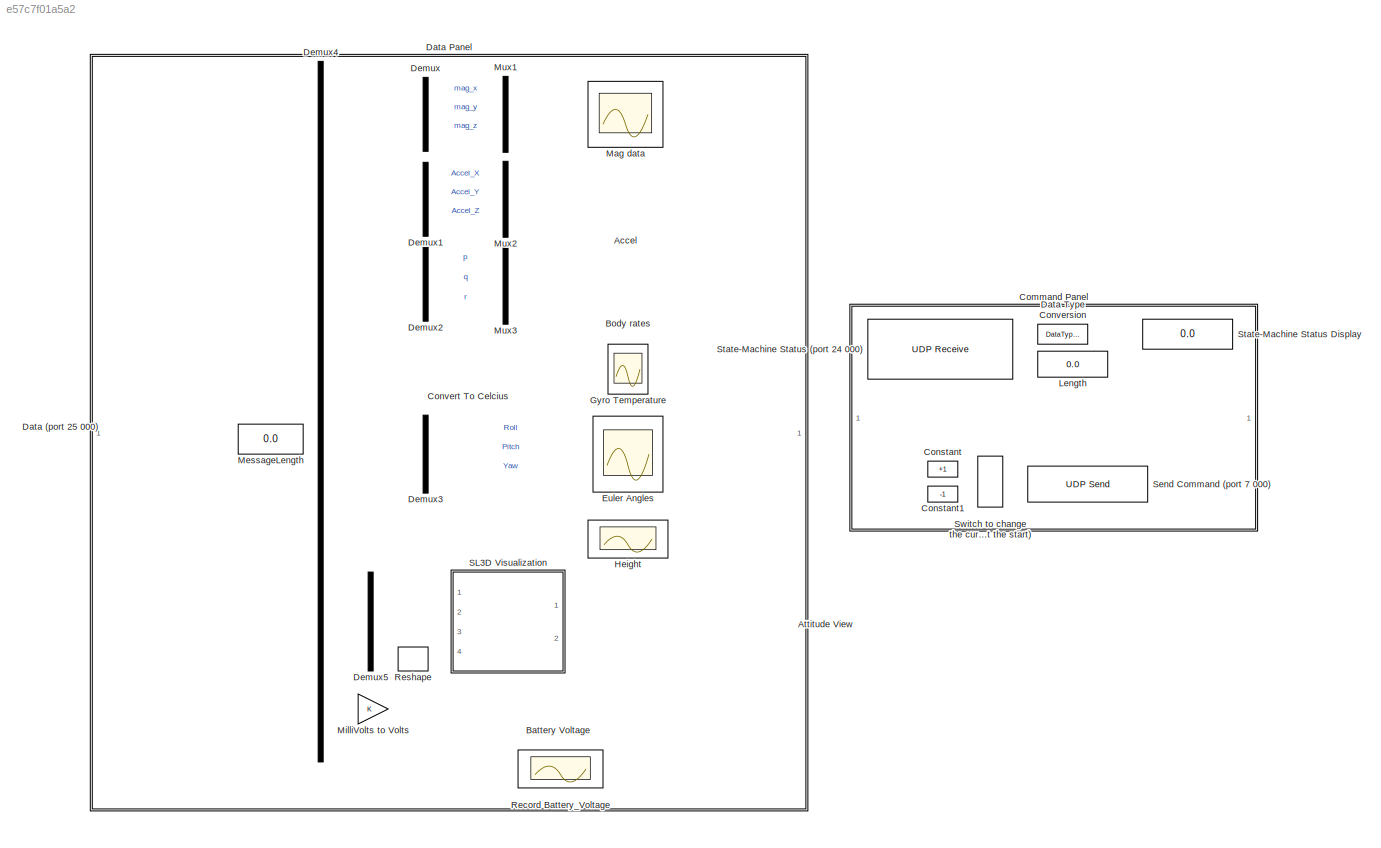
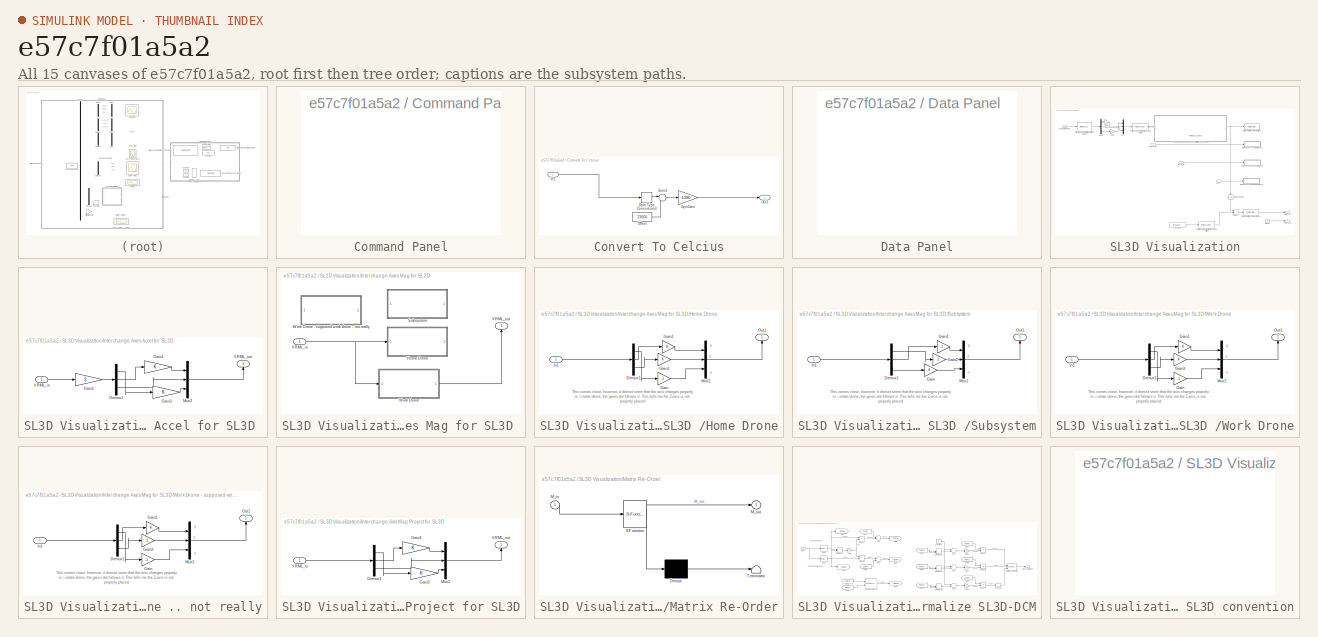
[diagram: thumbnail index - all 15 canvases of the model, root first then tree order]
MODEL slx_e57c7f01a5a2
KIND model
BLOCK [Scope] Accel
  DataFormat = StructureWithTime
  Floating = off
  LimitDataPoints = off
  NumInputPorts = 1
  Ports = [1]
  SampleTime = 0
  SaveName = Accel
  SaveToWorkspace = on
  ShowLegends = on
  TimeRange = 100
  YMax = 2575
  YMin = 2025
BLOCK [Reference] Attitude View  REF=vrlib/VR Sink
  AllowVariableSize = off
  AutoView = off
  FieldsWritten = Drone.rotation.4.1.1.double#Drone.translation.3.1.1.double
  InstantiateOnLoad = on
  Ports = [2]
  RemoteChange = off
  RemoteView = off
  SampleTime = -1
  SourceBlock = vrlib/VR Sink
  SourceType = Virtual Reality Sink
  VideoDimensions = []
  ViewEnable = on
  WorldFileName = myDrone3.wrl
BLOCK [Display] Battery Voltage
  Decimation = 1
  Ports = [1]
BLOCK [Scope] Body rates
  DataFormat = StructureWithTime
  Floating = off
  LimitDataPoints = off
  NumInputPorts = 1
  Ports = [1]
  SampleTime = 0
  SaveName = Gyro
  SaveToWorkspace = on
  ShowLegends = on
  TimeRange = 90
  YMax = 35
  YMin = -45
BLOCK [SubSystem] Command Panel
  Ports = []
  RequestExecContextInheritance = off
BLOCK [Constant] Constant
  Value = +1
BLOCK [Constant] Constant1
  Value = -1
BLOCK [SubSystem] Convert To Celcius
  Ports = [1, 1]
  RequestExecContextInheritance = off
BLOCK [DataTypeConversion] Convert To Celcius/Data Type Conversion3
  OutDataTypeStr = int16
  RndMeth = Floor
  SaturateOnIntegerOverflow = off
BLOCK [Gain] Convert To Celcius/GyroGain
  Gain = 1/280
  OutDataTypeStr = double
  ParamDataTypeStr = Inherit: Inherit via internal rule
  SaturateOnIntegerOverflow = off
BLOCK [Inport] Convert To Celcius/In1
  IconDisplay = Port number
BLOCK [Constant] Convert To Celcius/Offset
  OutDataTypeStr = int16
  Value = 23000
BLOCK [Outport] Convert To Celcius/Out1
  IconDisplay = Port number
BLOCK [Sum] Convert To Celcius/Sum4
  IconShape = round
  InputSameDT = off
  Inputs = |++
  OutDataTypeStr = Inherit: Inherit via internal rule
  Ports = [2, 1]
  SaturateOnIntegerOverflow = off
BLOCK [Reference] Data (port 25 000)  REF=dspnetwork/UDP Receive
  Ports = [0, 2]
  SourceBlock = dspnetwork/UDP Receive
  SourceType = UDP Receive
  blockingTime = 0
  dims = 34
  isVarSize = off
  localPort = 25000
  localURL = '0.0.0.0'
  recvBufferSize = 8192
  remotePort = -1
  remoteURL = '192.168.1.1'
  sampletime = 2/400
  showBlockingTime = off
  signalDatatype = double
BLOCK [SubSystem] Data Panel
  Ports = []
  RequestExecContextInheritance = off
BLOCK [DataTypeConversion] Data Type Conversion
  OutDataTypeStr = Enum: Drone_StateModeType
  RndMeth = Floor
  SaturateOnIntegerOverflow = off
BLOCK [Demux] Demux
  DisplayOption = bar
  Outputs = 3
  Ports = [1, 3]
BLOCK [Demux] Demux1
  DisplayOption = bar
  Outputs = 3
  Ports = [1, 3]
BLOCK [Demux] Demux2
  DisplayOption = bar
  Outputs = 3
  Ports = [1, 3]
BLOCK [Demux] Demux3
  DisplayOption = bar
  Outputs = 3
  Ports = [1, 3]
BLOCK [Demux] Demux4
  DisplayOption = bar
  Outputs = [3 3 3 1 3 2 18 1]
  Ports = [1, 8]
BLOCK [Demux] Demux5
  DisplayOption = bar
  Outputs = [3 3 3 9]
  Ports = [1, 4]
BLOCK [Scope] Euler Angles
  DataFormat = StructureWithTime
  Floating = off
  LimitDataPoints = off
  NumInputPorts = 3
  Ports = [3]
  SampleTime = 0
  SaveName = EulerAngles
  SaveToWorkspace = on
  ShowLegends = off
  TimeRange = 160
  YMax = -0.87~-0.18~4.95
  YMin = -1.04~-0.28~4.15
BLOCK [Scope] Gyro Temperature
  DataFormat = StructureWithTime
  Floating = off
  LegendLocations = 0.86326     0.92098     0.11358    0.028438
  LimitDataPoints = off
  NumInputPorts = 1
  Ports = [1]
  SampleTime = 0
  SaveName = TempMeasure
  SaveToWorkspace = on
  ShowLegends = on
  TimeRange = 100
  YMax = 82.5
  YMin = 47.5
  ZoomMode = yonly
BLOCK [Scope] Height
  DataFormat = StructureWithTime
  Floating = off
  LimitDataPoints = off
  NumInputPorts = 1
  Ports = [1]
  SampleTime = 0
  SaveName = RecordedHeight
  SaveToWorkspace = on
  ShowLegends = off
  YMax = 150
  YMin = -30
BLOCK [Display] Length
  Decimation = 1
  Ports = [1]
BLOCK [Scope] Mag data
  DataFormat = StructureWithTime
  Floating = off
  LimitDataPoints = off
  NumInputPorts = 1
  Ports = [1]
  SampleTime = 0
  SaveName = MagData
  SaveToWorkspace = on
  ShowLegends = on
  TimeRange = 100
  YMax = -30
  YMin = -240
BLOCK [Display] MessageLength
  Decimation = 1
  Ports = [1]
BLOCK [Gain] MilliVolts to Volts
  OutDataTypeStr = Inherit: Inherit via internal rule
  ParamDataTypeStr = Inherit: Inherit via internal rule
  SaturateOnIntegerOverflow = off
BLOCK [Mux] Mux1
  DisplayOption = bar
  Inputs = 3
  Ports = [3, 1]
BLOCK [Mux] Mux2
  DisplayOption = bar
  Inputs = 3
  Ports = [3, 1]
BLOCK [Mux] Mux3
  DisplayOption = bar
  Inputs = 3
  Ports = [3, 1]
BLOCK [Scope] Record Battery_Voltage
  DataFormat = StructureWithTime
  Floating = off
  LimitDataPoints = off
  NumInputPorts = 1
  Ports = [1]
  SampleTime = 0
  SaveName = ScopeData1
  ShowLegends = off
  YMax = 12.455
  YMin = 12.395
BLOCK [Reshape] Reshape
  OutputDimensionality = Customize
  OutputDimensions = [3,3]
  Ports = [1, 1]
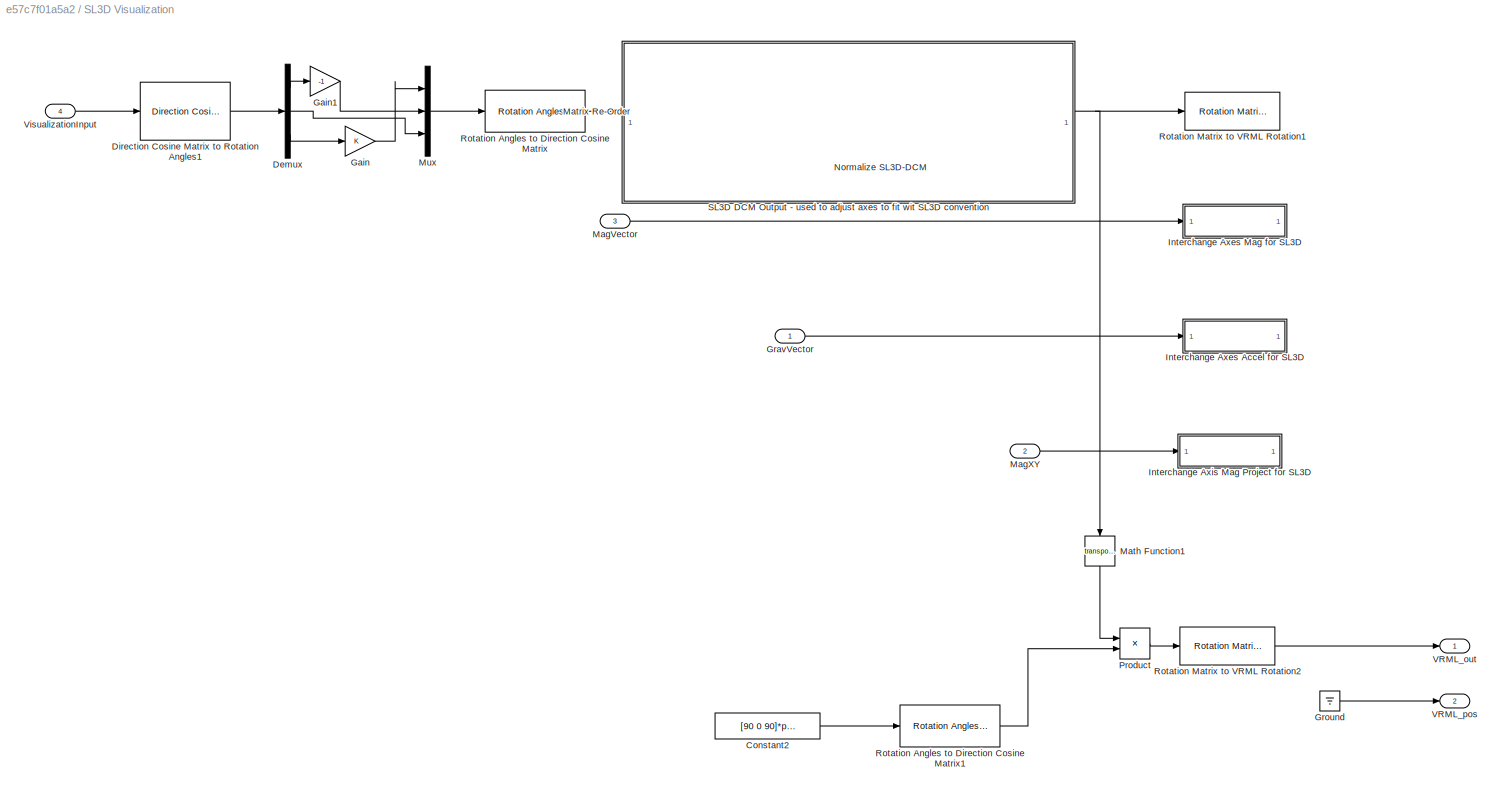
BLOCK [SubSystem] SL3D Visualization
  Ports = [4, 2]
  RequestExecContextInheritance = off
BLOCK [Constant] SL3D Visualization/Constant2
  Value = [90 0 90]*pi/180*1
BLOCK [Demux] SL3D Visualization/Demux
  DisplayOption = bar
  Outputs = 3
  Ports = [1, 3]
BLOCK [Reference] SL3D Visualization/Direction Cosine Matrix to Rotation Angles1  REF=aerolibtransform2/Direction Cosine Matrix
to Rotation Angles
  AttributesFormatString = Rotation Order: %<rotationOrder>
  Ports = [1, 1]
  SourceBlock = aerolibtransform2/Direction Cosine Matrix\nto Rotation Angles
  SourceType = DCM2Ang
  lim = ZeroR3
  rotationOrder = XYZ
BLOCK [Gain] SL3D Visualization/Gain
  ParamDataTypeStr = Inherit: Inherit via internal rule
  SaturateOnIntegerOverflow = off
BLOCK [Gain] SL3D Visualization/Gain1
  Gain = -1
  ParamDataTypeStr = Inherit: Inherit via internal rule
  SaturateOnIntegerOverflow = off
BLOCK [Inport] SL3D Visualization/GravVector
  IconDisplay = Port number
BLOCK [Ground] SL3D Visualization/Ground
BLOCK [SubSystem] SL3D Visualization/Interchange Axes Accel for SL3D 
  Ports = [1, 1]
  RequestExecContextInheritance = off
BLOCK [Demux] SL3D Visualization/Interchange Axes Accel for SL3D /Demux1
  DisplayOption = bar
  Outputs = 3
  Ports = [1, 3]
BLOCK [Gain] SL3D Visualization/Interchange Axes Accel for SL3D /Gain1
  Gain = 3
  OutDataTypeStr = Inherit: Inherit via internal rule
  ParamDataTypeStr = Inherit: Inherit via internal rule
  SaturateOnIntegerOverflow = off
BLOCK [Gain] SL3D Visualization/Interchange Axes Accel for SL3D /Gain2
  OutDataTypeStr = Inherit: Inherit via internal rule
  ParamDataTypeStr = Inherit: Inherit via internal rule
  SaturateOnIntegerOverflow = off
BLOCK [Gain] SL3D Visualization/Interchange Axes Accel for SL3D /Gain3
  OutDataTypeStr = Inherit: Inherit via internal rule
  ParamDataTypeStr = Inherit: Inherit via internal rule
  SaturateOnIntegerOverflow = off
BLOCK [Mux] SL3D Visualization/Interchange Axes Accel for SL3D /Mux2
  DisplayOption = bar
  Inputs = 3
  Ports = [3, 1]
BLOCK [Inport] SL3D Visualization/Interchange Axes Accel for SL3D /VRML_in
  IconDisplay = Port number
BLOCK [Outport] SL3D Visualization/Interchange Axes Accel for SL3D /VRML_out
  IconDisplay = Port number
BLOCK [SubSystem] SL3D Visualization/Interchange Axes Mag for SL3D 
  Ports = [1, 1]
  RequestExecContextInheritance = off
BLOCK [SubSystem] SL3D Visualization/Interchange Axes Mag for SL3D /Home Drone
  Ports = [1, 1]
  RequestExecContextInheritance = off
BLOCK [Demux] SL3D Visualization/Interchange Axes Mag for SL3D /Home Drone/Demux1
  DisplayOption = bar
  Outputs = 3
  Ports = [1, 3]
BLOCK [Gain] SL3D Visualization/Interchange Axes Mag for SL3D /Home Drone/Gain
  Gain = -1
  OutDataTypeStr = Inherit: Inherit via internal rule
  ParamDataTypeStr = Inherit: Inherit via internal rule
  SaturateOnIntegerOverflow = off
BLOCK [Gain] SL3D Visualization/Interchange Axes Mag for SL3D /Home Drone/Gain1
  OutDataTypeStr = Inherit: Inherit via internal rule
  ParamDataTypeStr = Inherit: Inherit via internal rule
  SaturateOnIntegerOverflow = off
BLOCK [Gain] SL3D Visualization/Interchange Axes Mag for SL3D /Home Drone/Gain2
  OutDataTypeStr = Inherit: Inherit via internal rule
  ParamDataTypeStr = Inherit: Inherit via internal rule
  SaturateOnIntegerOverflow = off
BLOCK [Inport] SL3D Visualization/Interchange Axes Mag for SL3D /Home Drone/In1
  IconDisplay = Port number
BLOCK [Mux] SL3D Visualization/Interchange Axes Mag for SL3D /Home Drone/Mux2
  DisplayOption = bar
  Inputs = 3
  Ports = [3, 1]
BLOCK [Outport] SL3D Visualization/Interchange Axes Mag for SL3D /Home Drone/Out1
  IconDisplay = Port number
BLOCK [SubSystem] SL3D Visualization/Interchange Axes Mag for SL3D /Subsystem
  Commented = on
  Ports = [1, 1]
  RequestExecContextInheritance = off
BLOCK [Demux] SL3D Visualization/Interchange Axes Mag for SL3D /Subsystem/Demux1
  DisplayOption = bar
  Outputs = 3
  Ports = [1, 3]
BLOCK [Gain] SL3D Visualization/Interchange Axes Mag for SL3D /Subsystem/Gain
  OutDataTypeStr = Inherit: Inherit via internal rule
  ParamDataTypeStr = Inherit: Inherit via internal rule
  SaturateOnIntegerOverflow = off
BLOCK [Gain] SL3D Visualization/Interchange Axes Mag for SL3D /Subsystem/Gain1
  Gain = -1
  OutDataTypeStr = Inherit: Inherit via internal rule
  ParamDataTypeStr = Inherit: Inherit via internal rule
  SaturateOnIntegerOverflow = off
BLOCK [Gain] SL3D Visualization/Interchange Axes Mag for SL3D /Subsystem/Gain2
  Gain = -1
  OutDataTypeStr = Inherit: Inherit via internal rule
  ParamDataTypeStr = Inherit: Inherit via internal rule
  SaturateOnIntegerOverflow = off
BLOCK [Inport] SL3D Visualization/Interchange Axes Mag for SL3D /Subsystem/In1
  IconDisplay = Port number
BLOCK [Mux] SL3D Visualization/Interchange Axes Mag for SL3D /Subsystem/Mux2
  DisplayOption = bar
  Inputs = 3
  Ports = [3, 1]
BLOCK [Outport] SL3D Visualization/Interchange Axes Mag for SL3D /Subsystem/Out1
  IconDisplay = Port number
BLOCK [Inport] SL3D Visualization/Interchange Axes Mag for SL3D /VRML_in
  IconDisplay = Port number
BLOCK [Outport] SL3D Visualization/Interchange Axes Mag for SL3D /VRML_out
  IconDisplay = Port number
BLOCK [SubSystem] SL3D Visualization/Interchange Axes Mag for SL3D /Work Drone
  Ports = [1, 1]
  RequestExecContextInheritance = off
BLOCK [SubSystem] SL3D Visualization/Interchange Axes Mag for SL3D /Work Drone - supposed work drone .. not really
  Ports = [1, 1]
  RequestExecContextInheritance = off
BLOCK [Demux] SL3D Visualization/Interchange Axes Mag for SL3D /Work Drone - supposed work drone .. not really/Demux1
  DisplayOption = bar
  Outputs = 3
  Ports = [1, 3]
BLOCK [Gain] SL3D Visualization/Interchange Axes Mag for SL3D /Work Drone - supposed work drone .. not really/Gain
  Gain = -1
  OutDataTypeStr = Inherit: Inherit via internal rule
  ParamDataTypeStr = Inherit: Inherit via internal rule
  SaturateOnIntegerOverflow = off
BLOCK [Gain] SL3D Visualization/Interchange Axes Mag for SL3D /Work Drone - supposed work drone .. not really/Gain1
  OutDataTypeStr = Inherit: Inherit via internal rule
  ParamDataTypeStr = Inherit: Inherit via internal rule
  SaturateOnIntegerOverflow = off
BLOCK [Gain] SL3D Visualization/Interchange Axes Mag for SL3D /Work Drone - supposed work drone .. not really/Gain2
  Gain = -1
  OutDataTypeStr = Inherit: Inherit via internal rule
  ParamDataTypeStr = Inherit: Inherit via internal rule
  SaturateOnIntegerOverflow = off
BLOCK [Inport] SL3D Visualization/Interchange Axes Mag for SL3D /Work Drone - supposed work drone .. not really/In1
  IconDisplay = Port number
BLOCK [Mux] SL3D Visualization/Interchange Axes Mag for SL3D /Work Drone - supposed work drone .. not really/Mux2
  DisplayOption = bar
  Inputs = 3
  Ports = [3, 1]
BLOCK [Outport] SL3D Visualization/Interchange Axes Mag for SL3D /Work Drone - supposed work drone .. not really/Out1
  IconDisplay = Port number
BLOCK [Demux] SL3D Visualization/Interchange Axes Mag for SL3D /Work Drone/Demux1
  DisplayOption = bar
  Outputs = 3
  Ports = [1, 3]
BLOCK [Gain] SL3D Visualization/Interchange Axes Mag for SL3D /Work Drone/Gain
  Gain = -1
  OutDataTypeStr = Inherit: Inherit via internal rule
  ParamDataTypeStr = Inherit: Inherit via internal rule
  SaturateOnIntegerOverflow = off
BLOCK [Gain] SL3D Visualization/Interchange Axes Mag for SL3D /Work Drone/Gain1
  OutDataTypeStr = Inherit: Inherit via internal rule
  ParamDataTypeStr = Inherit: Inherit via internal rule
  SaturateOnIntegerOverflow = off
BLOCK [Gain] SL3D Visualization/Interchange Axes Mag for SL3D /Work Drone/Gain2
  OutDataTypeStr = Inherit: Inherit via internal rule
  ParamDataTypeStr = Inherit: Inherit via internal rule
  SaturateOnIntegerOverflow = off
BLOCK [Inport] SL3D Visualization/Interchange Axes Mag for SL3D /Work Drone/In1
  IconDisplay = Port number
BLOCK [Mux] SL3D Visualization/Interchange Axes Mag for SL3D /Work Drone/Mux2
  DisplayOption = bar
  Inputs = 3
  Ports = [3, 1]
BLOCK [Outport] SL3D Visualization/Interchange Axes Mag for SL3D /Work Drone/Out1
  IconDisplay = Port number
BLOCK [SubSystem] SL3D Visualization/Interchange Axis Mag Project for SL3D
  Ports = [1, 1]
  RequestExecContextInheritance = off
BLOCK [Demux] SL3D Visualization/Interchange Axis Mag Project for SL3D/Demux1
  DisplayOption = bar
  Outputs = 3
  Ports = [1, 3]
BLOCK [Gain] SL3D Visualization/Interchange Axis Mag Project for SL3D/Gain2
  OutDataTypeStr = Inherit: Inherit via internal rule
  ParamDataTypeStr = Inherit: Inherit via internal rule
  SaturateOnIntegerOverflow = off
BLOCK [Gain] SL3D Visualization/Interchange Axis Mag Project for SL3D/Gain3
  OutDataTypeStr = Inherit: Inherit via internal rule
  ParamDataTypeStr = Inherit: Inherit via internal rule
  SaturateOnIntegerOverflow = off
BLOCK [Mux] SL3D Visualization/Interchange Axis Mag Project for SL3D/Mux2
  DisplayOption = bar
  Inputs = 3
  Ports = [3, 1]
BLOCK [Inport] SL3D Visualization/Interchange Axis Mag Project for SL3D/VRML_in
  IconDisplay = Port number
BLOCK [Outport] SL3D Visualization/Interchange Axis Mag Project for SL3D/VRML_out
  IconDisplay = Port number
BLOCK [Inport] SL3D Visualization/MagVector
  IconDisplay = Port number
  Port = 3
BLOCK [Inport] SL3D Visualization/MagXY
  IconDisplay = Port number
  Port = 2
BLOCK [Math] SL3D Visualization/Math Function1
  Operator = transpose
  Ports = [1, 1]
BLOCK [SubSystem] SL3D Visualization/Matrix Re-Order
  ErrorFcn = Stateflow.Translate.translate
  PermitHierarchicalResolution = ExplicitOnly
  Ports = [1, 1]
  RequestExecContextInheritance = off
  SFBlockType = MATLAB Function
  TreatAsAtomicUnit = on
BLOCK [Demux] SL3D Visualization/Matrix Re-Order/ Demux 
  Outputs = 1
  Ports = [1, 1]
BLOCK [S-Function] SL3D Visualization/Matrix Re-Order/ SFunction 
  EnableBusSupport = on
  FunctionName = sf_sfun
  PortCounts = [1 2]
  Ports = [1, 2]
  Tag = Stateflow S-Function AR_Drone_Host_Receive 11
BLOCK [Terminator] SL3D Visualization/Matrix Re-Order/ Terminator 
BLOCK [Inport] SL3D Visualization/Matrix Re-Order/M_in
  IconDisplay = Port number
BLOCK [Outport] SL3D Visualization/Matrix Re-Order/M_out
  IconDisplay = Port number
BLOCK [Mux] SL3D Visualization/Mux
  DisplayOption = bar
  Inputs = 3
  Ports = [3, 1]
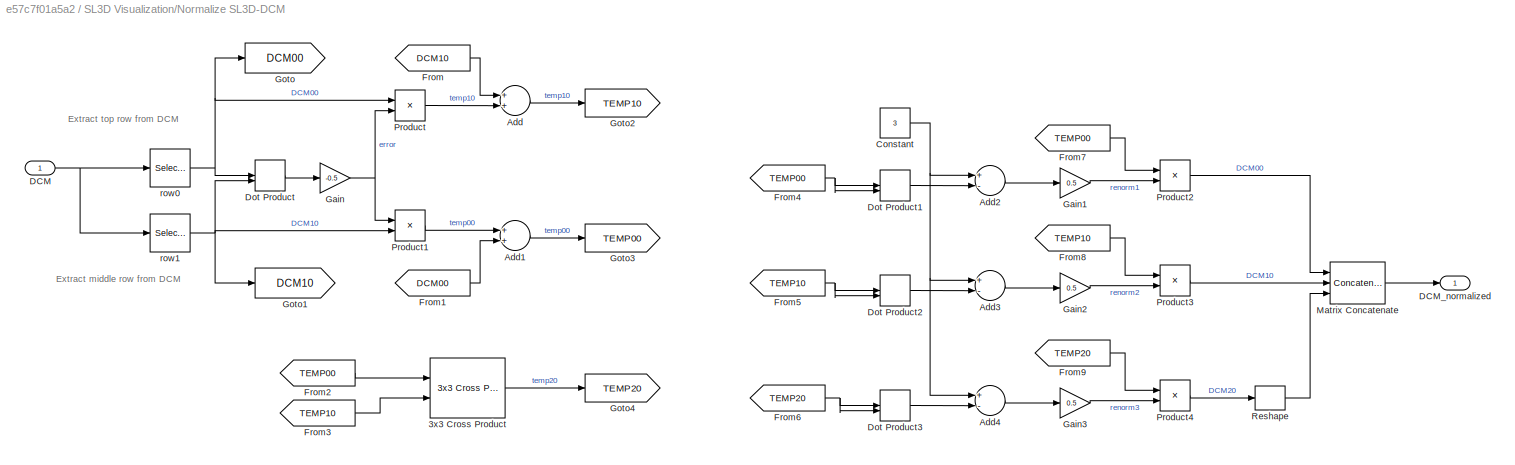
BLOCK [SubSystem] SL3D Visualization/Normalize SL3D-DCM
  Commented = through
  Ports = [1, 1]
  RequestExecContextInheritance = off
  TreatAsAtomicUnit = on
BLOCK [Reference] SL3D Visualization/Normalize SL3D-DCM/3x3 Cross Product  REF=aerolibutil/3x3 Cross Product
  Ports = [2, 1]
  SourceBlock = aerolibutil/3x3 Cross Product
  SourceType = CrossProduct
BLOCK [Sum] SL3D Visualization/Normalize SL3D-DCM/Add
  InputSameDT = off
  OutDataTypeStr = Inherit: Inherit via internal rule
  Ports = [2, 1]
  SaturateOnIntegerOverflow = off
BLOCK [Sum] SL3D Visualization/Normalize SL3D-DCM/Add1
  InputSameDT = off
  OutDataTypeStr = Inherit: Inherit via internal rule
  Ports = [2, 1]
  SaturateOnIntegerOverflow = off
BLOCK [Sum] SL3D Visualization/Normalize SL3D-DCM/Add2
  InputSameDT = off
  Inputs = +-
  OutDataTypeStr = Inherit: Inherit via internal rule
  Ports = [2, 1]
  SaturateOnIntegerOverflow = off
BLOCK [Sum] SL3D Visualization/Normalize SL3D-DCM/Add3
  InputSameDT = off
  Inputs = +-
  OutDataTypeStr = Inherit: Inherit via internal rule
  Ports = [2, 1]
  SaturateOnIntegerOverflow = off
BLOCK [Sum] SL3D Visualization/Normalize SL3D-DCM/Add4
  InputSameDT = off
  Inputs = +-
  OutDataTypeStr = Inherit: Inherit via internal rule
  Ports = [2, 1]
  SaturateOnIntegerOverflow = off
BLOCK [Constant] SL3D Visualization/Normalize SL3D-DCM/Constant
  OutDataTypeStr = double
  SampleTime = -1
  Value = 3
BLOCK [Inport] SL3D Visualization/Normalize SL3D-DCM/DCM
  IconDisplay = Port number
  OutDataTypeStr = double
  PortDimensions = [3,3]
BLOCK [Outport] SL3D Visualization/Normalize SL3D-DCM/DCM_normalized
  IconDisplay = Port number
  OutDataTypeStr = double
BLOCK [DotProduct] SL3D Visualization/Normalize SL3D-DCM/Dot Product
  OutDataTypeStr = Inherit: Inherit via internal rule
BLOCK [DotProduct] SL3D Visualization/Normalize SL3D-DCM/Dot Product1
  OutDataTypeStr = Inherit: Inherit via internal rule
BLOCK [DotProduct] SL3D Visualization/Normalize SL3D-DCM/Dot Product2
  OutDataTypeStr = Inherit: Inherit via internal rule
BLOCK [DotProduct] SL3D Visualization/Normalize SL3D-DCM/Dot Product3
  OutDataTypeStr = Inherit: Inherit via internal rule
BLOCK [From] SL3D Visualization/Normalize SL3D-DCM/From
  GotoTag = DCM10
BLOCK [From] SL3D Visualization/Normalize SL3D-DCM/From1
  GotoTag = DCM00
BLOCK [From] SL3D Visualization/Normalize SL3D-DCM/From2
  GotoTag = TEMP00
BLOCK [From] SL3D Visualization/Normalize SL3D-DCM/From3
  GotoTag = TEMP10
BLOCK [From] SL3D Visualization/Normalize SL3D-DCM/From4
  GotoTag = TEMP00
BLOCK [From] SL3D Visualization/Normalize SL3D-DCM/From5
  GotoTag = TEMP10
BLOCK [From] SL3D Visualization/Normalize SL3D-DCM/From6
  GotoTag = TEMP20
BLOCK [From] SL3D Visualization/Normalize SL3D-DCM/From7
  GotoTag = TEMP00
BLOCK [From] SL3D Visualization/Normalize SL3D-DCM/From8
  GotoTag = TEMP10
BLOCK [From] SL3D Visualization/Normalize SL3D-DCM/From9
  GotoTag = TEMP20
BLOCK [Gain] SL3D Visualization/Normalize SL3D-DCM/Gain
  Gain = -0.5
  OutDataTypeStr = Inherit: Inherit via internal rule
  ParamDataTypeStr = Inherit: Inherit via internal rule
  SaturateOnIntegerOverflow = off
BLOCK [Gain] SL3D Visualization/Normalize SL3D-DCM/Gain1
  Gain = 0.5
  OutDataTypeStr = single
  ParamDataTypeStr = Inherit: Inherit via internal rule
  SaturateOnIntegerOverflow = off
BLOCK [Gain] SL3D Visualization/Normalize SL3D-DCM/Gain2
  Gain = 0.5
  OutDataTypeStr = single
  ParamDataTypeStr = Inherit: Inherit via internal rule
  SaturateOnIntegerOverflow = off
BLOCK [Gain] SL3D Visualization/Normalize SL3D-DCM/Gain3
  Gain = 0.5
  OutDataTypeStr = single
  ParamDataTypeStr = Inherit: Inherit via internal rule
  SaturateOnIntegerOverflow = off
BLOCK [Goto] SL3D Visualization/Normalize SL3D-DCM/Goto
  GotoTag = DCM00
BLOCK [Goto] SL3D Visualization/Normalize SL3D-DCM/Goto1
  GotoTag = DCM10
BLOCK [Goto] SL3D Visualization/Normalize SL3D-DCM/Goto2
  GotoTag = TEMP10
BLOCK [Goto] SL3D Visualization/Normalize SL3D-DCM/Goto3
  GotoTag = TEMP00
BLOCK [Goto] SL3D Visualization/Normalize SL3D-DCM/Goto4
  GotoTag = TEMP20
BLOCK [Concatenate] SL3D Visualization/Normalize SL3D-DCM/Matrix Concatenate
  Mode = Multidimensional array
  NumInputs = 3
  Ports = [3, 1]
BLOCK [Product] SL3D Visualization/Normalize SL3D-DCM/Product
  InputSameDT = off
  OutDataTypeStr = Inherit: Inherit via internal rule
  Ports = [2, 1]
  SaturateOnIntegerOverflow = off
BLOCK [Product] SL3D Visualization/Normalize SL3D-DCM/Product1
  InputSameDT = off
  OutDataTypeStr = Inherit: Inherit via internal rule
  Ports = [2, 1]
  SaturateOnIntegerOverflow = off
BLOCK [Product] SL3D Visualization/Normalize SL3D-DCM/Product2
  InputSameDT = off
  OutDataTypeStr = Inherit: Inherit via internal rule
  Ports = [2, 1]
  SaturateOnIntegerOverflow = off
BLOCK [Product] SL3D Visualization/Normalize SL3D-DCM/Product3
  InputSameDT = off
  OutDataTypeStr = Inherit: Inherit via internal rule
  Ports = [2, 1]
  SaturateOnIntegerOverflow = off
BLOCK [Product] SL3D Visualization/Normalize SL3D-DCM/Product4
  InputSameDT = off
  OutDataTypeStr = Inherit: Inherit via internal rule
  Ports = [2, 1]
  SaturateOnIntegerOverflow = off
BLOCK [Reshape] SL3D Visualization/Normalize SL3D-DCM/Reshape
  OutputDimensionality = Row vector (2-D)
  Ports = [1, 1]
BLOCK [Selector] SL3D Visualization/Normalize SL3D-DCM/row0
  IndexMode = Zero-based
  IndexOptions = Index vector (dialog),Index vector (dialog)
  Indices = 0,[0:2]
  InputPortWidth = 3
  NumberOfDimensions = 2
  OutputSizes = 1,1
  Ports = [1, 1]
BLOCK [Selector] SL3D Visualization/Normalize SL3D-DCM/row1
  IndexMode = Zero-based
  IndexOptions = Index vector (dialog),Index vector (dialog)
  Indices = 1,[0:2]
  InputPortWidth = 3
  NumberOfDimensions = 2
  OutputSizes = 1,1
  Ports = [1, 1]
BLOCK [Product] SL3D Visualization/Product
  InputSameDT = off
  Multiplication = Matrix(*)
  OutDataTypeStr = Inherit: Inherit via internal rule
  Ports = [2, 1]
  RndMeth = Floor
  SaturateOnIntegerOverflow = off
BLOCK [Reference] SL3D Visualization/Rotation Angles to Direction Cosine Matrix  REF=aerolibtransform2/Rotation Angles to
Direction Cosine Matrix
  AttributesFormatString = Rotation Order: %<rotationOrder>
  Ports = [1, 1]
  SourceBlock = aerolibtransform2/Rotation Angles to\nDirection Cosine Matrix
  SourceType = Ang2DCM
  rotationOrder = XYZ
BLOCK [Reference] SL3D Visualization/Rotation Angles to Direction Cosine Matrix1  REF=aerolibtransform2/Rotation Angles to
Direction Cosine Matrix
  AttributesFormatString = Rotation Order: %<rotationOrder>
  Ports = [1, 1]
  SourceBlock = aerolibtransform2/Rotation Angles to\nDirection Cosine Matrix
  SourceType = Ang2DCM
  rotationOrder = XYZ
BLOCK [Reference] SL3D Visualization/Rotation Matrix to VRML Rotation1  REF=vrlib/Utilities/Rotation Matrix
to VRML Rotation
  Ports = [1, 1]
  SourceBlock = vrlib/Utilities/Rotation Matrix\nto VRML Rotation
  SourceType = Rotation Matrix to VRML Rotation
  maxzero = 1e-12
BLOCK [Reference] SL3D Visualization/Rotation Matrix to VRML Rotation2  REF=vrlib/Utilities/Rotation Matrix
to VRML Rotation
  Ports = [1, 1]
  SourceBlock = vrlib/Utilities/Rotation Matrix\nto VRML Rotation
  SourceType = Rotation Matrix to VRML Rotation
  maxzero = 1e-12
BLOCK [SubSystem] SL3D Visualization/SL3D DCM Output - used to adjust axes to fit wit SL3D convention
  Ports = []
  RequestExecContextInheritance = off
BLOCK [Outport] SL3D Visualization/VRML_out
  IconDisplay = Port number
BLOCK [Outport] SL3D Visualization/VRML_pos
  IconDisplay = Port number
  Port = 2
BLOCK [Inport] SL3D Visualization/VisualizationInput
  IconDisplay = Port number
  Port = 4
BLOCK [Reference] Send Command (port 7 000)  REF=dspnetwork/UDP Send
  Ports = [1]
  SourceBlock = dspnetwork/UDP Send
  SourceType = UDP Send
  blockPlatform = LINUX
  localPort = -1
  localPortSource = Automatically determine
  localURL = '0.0.0.0'
  remotePort = 6000
  remoteURL = '192.168.1.1'
  sampletime = -1
  separateLengthPort = 0
BLOCK [Reference] State-Machine Status (port 24 000)  REF=dspnetwork/UDP Receive
  Ports = [0, 2]
  SourceBlock = dspnetwork/UDP Receive
  SourceType = UDP Receive
  blockPlatform = LINUX
  blockingTime = 0.05
  dims = 1
  isVarSize = off
  localPort = 24000
  localURL = '0.0.0.0'
  recvBufferSize = 100
  remotePort = -1
  remoteURL = '192.168.1.1'
  sampletime = 1/400
  showBlockingTime = on
  signalDatatype = int8
BLOCK [Display] State-Machine Status Display
  Decimation = 1
  Ports = [1]
BLOCK [ManualSwitch] Switch to change the current Drone State (it has to be down at the start)
  CurrentSetting = 0
ANNOTATION SL3D Visualization/Interchange Axes Mag for SL3D /Home Drone: This comes close, however, it doesnt seem that the axis changes properly ie: i rotate drone, the green dot follows it. This tells me the Z-axis is not properly placed
ANNOTATION SL3D Visualization/Interchange Axes Mag for SL3D /Home Drone: x
ANNOTATION SL3D Visualization/Interchange Axes Mag for SL3D /Home Drone: y
ANNOTATION SL3D Visualization/Interchange Axes Mag for SL3D /Home Drone: z
ANNOTATION SL3D Visualization/Interchange Axes Mag for SL3D /Subsystem: This comes close, however, it doesnt seem that the axis changes properly ie: i rotate drone, the green dot follows it. This tells me the Z-axis is not properly placed
ANNOTATION SL3D Visualization/Interchange Axes Mag for SL3D /Subsystem: x
ANNOTATION SL3D Visualization/Interchange Axes Mag for SL3D /Subsystem: y
ANNOTATION SL3D Visualization/Interchange Axes Mag for SL3D /Subsystem: z
ANNOTATION SL3D Visualization/Interchange Axes Mag for SL3D /Work Drone: This comes close, however, it doesnt seem that the axis changes properly ie: i rotate drone, the green dot follows it. This tells me the Z-axis is not properly placed
ANNOTATION SL3D Visualization/Interchange Axes Mag for SL3D /Work Drone: x
ANNOTATION SL3D Visualization/Interchange Axes Mag for SL3D /Work Drone: y
ANNOTATION SL3D Visualization/Interchange Axes Mag for SL3D /Work Drone: z
ANNOTATION SL3D Visualization/Interchange Axes Mag for SL3D /Work Drone - supposed work drone .. not really: This comes close, however, it doesnt seem that the axis changes properly ie: i rotate drone, the green dot follows it. This tells me the Z-axis is not properly placed
ANNOTATION SL3D Visualization/Interchange Axes Mag for SL3D /Work Drone - supposed work drone .. not really: x
ANNOTATION SL3D Visualization/Interchange Axes Mag for SL3D /Work Drone - supposed work drone .. not really: y
ANNOTATION SL3D Visualization/Interchange Axes Mag for SL3D /Work Drone - supposed work drone .. not really: z
ANNOTATION SL3D Visualization/Normalize SL3D-DCM: Extract middle row from DCM
ANNOTATION SL3D Visualization/Normalize SL3D-DCM: Extract top row from DCM
LINE Constant1:1 -> Switch to change the current Drone State (it has to be down at the start):2
LINE Constant:1 -> Switch to change the current Drone State (it has to be down at the start):1
LINE Convert To Celcius/Data Type Conversion3:1 -> Convert To Celcius/Sum4:1
LINE Convert To Celcius/GyroGain:1 -> Convert To Celcius/Out1:1
LINE Convert To Celcius/In1:1 -> Convert To Celcius/Data Type Conversion3:1
LINE Convert To Celcius/Offset:1 -> Convert To Celcius/Sum4:2
LINE Convert To Celcius/Sum4:1 -> Convert To Celcius/GyroGain:1
LINE Convert To Celcius:1 -> Gyro Temperature:1
LINE Data (port 25 000):1 -> Demux4:1
LINE Data (port 25 000):2 -> MessageLength:1
LINE Data Type Conversion:1 -> State-Machine Status Display:1
LINE Demux1:1 -> Mux2:1
LINE Demux1:2 -> Mux2:2
LINE Demux1:3 -> Mux2:3
LINE Demux2:1 -> Mux3:1
LINE Demux2:2 -> Mux3:2
LINE Demux2:3 -> Mux3:3
LINE Demux3:1 -> Euler Angles:1
LINE Demux3:2 -> Euler Angles:2
LINE Demux3:3 -> Euler Angles:3
LINE Demux4:1 -> Demux:1
LINE Demux4:2 -> Demux1:1
LINE Demux4:3 -> Demux2:1
LINE Demux4:4 -> Convert To Celcius:1
LINE Demux4:5 -> Demux3:1
LINE Demux4:6 -> Height:1
LINE Demux4:7 -> Demux5:1
LINE Demux4:8 -> MilliVolts to Volts:1
LINE Demux5:1 -> SL3D Visualization:1
LINE Demux5:2 -> SL3D Visualization:2
LINE Demux5:3 -> SL3D Visualization:3
LINE Demux5:4 -> Reshape:1
LINE Demux:1 -> Mux1:1
LINE Demux:2 -> Mux1:2
LINE Demux:3 -> Mux1:3
NET MilliVolts to Volts:1 -> Battery Voltage:1, Record Battery_Voltage:1
LINE Mux1:1 -> Mag data:1
LINE Mux2:1 -> Accel:1
LINE Mux3:1 -> Body rates:1
LINE Reshape:1 -> SL3D Visualization:4
LINE SL3D Visualization/Constant2:1 -> SL3D Visualization/Rotation Angles to Direction Cosine Matrix1:1
LINE SL3D Visualization/Demux:1 -> SL3D Visualization/Gain1:1
LINE SL3D Visualization/Demux:2 -> SL3D Visualization/Mux:3
LINE SL3D Visualization/Demux:3 -> SL3D Visualization/Gain:1
LINE SL3D Visualization/Direction Cosine Matrix to Rotation Angles1:1 -> SL3D Visualization/Demux:1
LINE SL3D Visualization/Gain1:1 -> SL3D Visualization/Mux:2
LINE SL3D Visualization/Gain:1 -> SL3D Visualization/Mux:1
LINE SL3D Visualization/GravVector:1 -> SL3D Visualization/Interchange Axes Accel for SL3D :1
LINE SL3D Visualization/Ground:1 -> SL3D Visualization/VRML_pos:1
LINE SL3D Visualization/Interchange Axes Accel for SL3D /Demux1:1 -> SL3D Visualization/Interchange Axes Accel for SL3D /Gain3:1
LINE SL3D Visualization/Interchange Axes Accel for SL3D /Demux1:2 -> SL3D Visualization/Interchange Axes Accel for SL3D /Gain2:1
LINE SL3D Visualization/Interchange Axes Accel for SL3D /Demux1:3 -> SL3D Visualization/Interchange Axes Accel for SL3D /Mux2:2
LINE SL3D Visualization/Interchange Axes Accel for SL3D /Gain1:1 -> SL3D Visualization/Interchange Axes Accel for SL3D /Demux1:1
LINE SL3D Visualization/Interchange Axes Accel for SL3D /Gain2:1 -> SL3D Visualization/Interchange Axes Accel for SL3D /Mux2:1
LINE SL3D Visualization/Interchange Axes Accel for SL3D /Gain3:1 -> SL3D Visualization/Interchange Axes Accel for SL3D /Mux2:3
LINE SL3D Visualization/Interchange Axes Accel for SL3D /Mux2:1 -> SL3D Visualization/Interchange Axes Accel for SL3D /VRML_out:1
LINE SL3D Visualization/Interchange Axes Accel for SL3D /VRML_in:1 -> SL3D Visualization/Interchange Axes Accel for SL3D /Gain1:1
LINE SL3D Visualization/Interchange Axes Mag for SL3D /Home Drone/Demux1:1 -> SL3D Visualization/Interchange Axes Mag for SL3D /Home Drone/Gain:1
LINE SL3D Visualization/Interchange Axes Mag for SL3D /Home Drone/Demux1:2 -> SL3D Visualization/Interchange Axes Mag for SL3D /Home Drone/Gain1:1
LINE SL3D Visualization/Interchange Axes Mag for SL3D /Home Drone/Demux1:3 -> SL3D Visualization/Interchange Axes Mag for SL3D /Home Drone/Gain2:1
LINE SL3D Visualization/Interchange Axes Mag for SL3D /Home Drone/Gain1:1 -> SL3D Visualization/Interchange Axes Mag for SL3D /Home Drone/Mux2:1
LINE SL3D Visualization/Interchange Axes Mag for SL3D /Home Drone/Gain2:1 -> SL3D Visualization/Interchange Axes Mag for SL3D /Home Drone/Mux2:2
LINE SL3D Visualization/Interchange Axes Mag for SL3D /Home Drone/Gain:1 -> SL3D Visualization/Interchange Axes Mag for SL3D /Home Drone/Mux2:3
LINE SL3D Visualization/Interchange Axes Mag for SL3D /Home Drone/In1:1 -> SL3D Visualization/Interchange Axes Mag for SL3D /Home Drone/Demux1:1
LINE SL3D Visualization/Interchange Axes Mag for SL3D /Home Drone/Mux2:1 -> SL3D Visualization/Interchange Axes Mag for SL3D /Home Drone/Out1:1
LINE SL3D Visualization/Interchange Axes Mag for SL3D /Subsystem/Demux1:1 -> SL3D Visualization/Interchange Axes Mag for SL3D /Subsystem/Gain2:1
LINE SL3D Visualization/Interchange Axes Mag for SL3D /Subsystem/Demux1:2 -> SL3D Visualization/Interchange Axes Mag for SL3D /Subsystem/Gain1:1
LINE SL3D Visualization/Interchange Axes Mag for SL3D /Subsystem/Demux1:3 -> SL3D Visualization/Interchange Axes Mag for SL3D /Subsystem/Gain:1
LINE SL3D Visualization/Interchange Axes Mag for SL3D /Subsystem/Gain1:1 -> SL3D Visualization/Interchange Axes Mag for SL3D /Subsystem/Mux2:1
LINE SL3D Visualization/Interchange Axes Mag for SL3D /Subsystem/Gain2:1 -> SL3D Visualization/Interchange Axes Mag for SL3D /Subsystem/Mux2:2
LINE SL3D Visualization/Interchange Axes Mag for SL3D /Subsystem/Gain:1 -> SL3D Visualization/Interchange Axes Mag for SL3D /Subsystem/Mux2:3
LINE SL3D Visualization/Interchange Axes Mag for SL3D /Subsystem/In1:1 -> SL3D Visualization/Interchange Axes Mag for SL3D /Subsystem/Demux1:1
LINE SL3D Visualization/Interchange Axes Mag for SL3D /Subsystem/Mux2:1 -> SL3D Visualization/Interchange Axes Mag for SL3D /Subsystem/Out1:1
NET SL3D Visualization/Interchange Axes Mag for SL3D /VRML_in:1 -> SL3D Visualization/Interchange Axes Mag for SL3D /Home Drone:1, SL3D Visualization/Interchange Axes Mag for SL3D /Work Drone:1
LINE SL3D Visualization/Interchange Axes Mag for SL3D /Work Drone - supposed work drone .. not really/Demux1:1 -> SL3D Visualization/Interchange Axes Mag for SL3D /Work Drone - supposed work drone .. not really/Gain:1
LINE SL3D Visualization/Interchange Axes Mag for SL3D /Work Drone - supposed work drone .. not really/Demux1:2 -> SL3D Visualization/Interchange Axes Mag for SL3D /Work Drone - supposed work drone .. not really/Gain1:1
LINE SL3D Visualization/Interchange Axes Mag for SL3D /Work Drone - supposed work drone .. not really/Demux1:3 -> SL3D Visualization/Interchange Axes Mag for SL3D /Work Drone - supposed work drone .. not really/Gain2:1
LINE SL3D Visualization/Interchange Axes Mag for SL3D /Work Drone - supposed work drone .. not really/Gain1:1 -> SL3D Visualization/Interchange Axes Mag for SL3D /Work Drone - supposed work drone .. not really/Mux2:1
LINE SL3D Visualization/Interchange Axes Mag for SL3D /Work Drone - supposed work drone .. not really/Gain2:1 -> SL3D Visualization/Interchange Axes Mag for SL3D /Work Drone - supposed work drone .. not really/Mux2:2
LINE SL3D Visualization/Interchange Axes Mag for SL3D /Work Drone - supposed work drone .. not really/Gain:1 -> SL3D Visualization/Interchange Axes Mag for SL3D /Work Drone - supposed work drone .. not really/Mux2:3
LINE SL3D Visualization/Interchange Axes Mag for SL3D /Work Drone - supposed work drone .. not really/In1:1 -> SL3D Visualization/Interchange Axes Mag for SL3D /Work Drone - supposed work drone .. not really/Demux1:1
LINE SL3D Visualization/Interchange Axes Mag for SL3D /Work Drone - supposed work drone .. not really/Mux2:1 -> SL3D Visualization/Interchange Axes Mag for SL3D /Work Drone - supposed work drone .. not really/Out1:1
LINE SL3D Visualization/Interchange Axes Mag for SL3D /Work Drone/Demux1:1 -> SL3D Visualization/Interchange Axes Mag for SL3D /Work Drone/Gain:1
LINE SL3D Visualization/Interchange Axes Mag for SL3D /Work Drone/Demux1:2 -> SL3D Visualization/Interchange Axes Mag for SL3D /Work Drone/Gain1:1
LINE SL3D Visualization/Interchange Axes Mag for SL3D /Work Drone/Demux1:3 -> SL3D Visualization/Interchange Axes Mag for SL3D /Work Drone/Gain2:1
LINE SL3D Visualization/Interchange Axes Mag for SL3D /Work Drone/Gain1:1 -> SL3D Visualization/Interchange Axes Mag for SL3D /Work Drone/Mux2:1
LINE SL3D Visualization/Interchange Axes Mag for SL3D /Work Drone/Gain2:1 -> SL3D Visualization/Interchange Axes Mag for SL3D /Work Drone/Mux2:2
LINE SL3D Visualization/Interchange Axes Mag for SL3D /Work Drone/Gain:1 -> SL3D Visualization/Interchange Axes Mag for SL3D /Work Drone/Mux2:3
LINE SL3D Visualization/Interchange Axes Mag for SL3D /Work Drone/In1:1 -> SL3D Visualization/Interchange Axes Mag for SL3D /Work Drone/Demux1:1
LINE SL3D Visualization/Interchange Axes Mag for SL3D /Work Drone/Mux2:1 -> SL3D Visualization/Interchange Axes Mag for SL3D /Work Drone/Out1:1
LINE SL3D Visualization/Interchange Axes Mag for SL3D /Work Drone:1 -> SL3D Visualization/Interchange Axes Mag for SL3D /VRML_out:1
LINE SL3D Visualization/Interchange Axis Mag Project for SL3D/Demux1:1 -> SL3D Visualization/Interchange Axis Mag Project for SL3D/Gain3:1
LINE SL3D Visualization/Interchange Axis Mag Project for SL3D/Demux1:2 -> SL3D Visualization/Interchange Axis Mag Project for SL3D/Gain2:1
LINE SL3D Visualization/Interchange Axis Mag Project for SL3D/Demux1:3 -> SL3D Visualization/Interchange Axis Mag Project for SL3D/Mux2:2
LINE SL3D Visualization/Interchange Axis Mag Project for SL3D/Gain2:1 -> SL3D Visualization/Interchange Axis Mag Project for SL3D/Mux2:1
LINE SL3D Visualization/Interchange Axis Mag Project for SL3D/Gain3:1 -> SL3D Visualization/Interchange Axis Mag Project for SL3D/Mux2:3
LINE SL3D Visualization/Interchange Axis Mag Project for SL3D/Mux2:1 -> SL3D Visualization/Interchange Axis Mag Project for SL3D/VRML_out:1
LINE SL3D Visualization/Interchange Axis Mag Project for SL3D/VRML_in:1 -> SL3D Visualization/Interchange Axis Mag Project for SL3D/Demux1:1
LINE SL3D Visualization/MagVector:1 -> SL3D Visualization/Interchange Axes Mag for SL3D :1
LINE SL3D Visualization/MagXY:1 -> SL3D Visualization/Interchange Axis Mag Project for SL3D:1
LINE SL3D Visualization/Math Function1:1 -> SL3D Visualization/Product:1
LINE SL3D Visualization/Matrix Re-Order:1 -> SL3D Visualization/Normalize SL3D-DCM:1
LINE SL3D Visualization/Mux:1 -> SL3D Visualization/Rotation Angles to Direction Cosine Matrix:1
LINE SL3D Visualization/Normalize SL3D-DCM/3x3 Cross Product:1 -> SL3D Visualization/Normalize SL3D-DCM/Goto4:1
LINE SL3D Visualization/Normalize SL3D-DCM/Add1:1 -> SL3D Visualization/Normalize SL3D-DCM/Goto3:1
LINE SL3D Visualization/Normalize SL3D-DCM/Add2:1 -> SL3D Visualization/Normalize SL3D-DCM/Gain1:1
LINE SL3D Visualization/Normalize SL3D-DCM/Add3:1 -> SL3D Visualization/Normalize SL3D-DCM/Gain2:1
LINE SL3D Visualization/Normalize SL3D-DCM/Add4:1 -> SL3D Visualization/Normalize SL3D-DCM/Gain3:1
LINE SL3D Visualization/Normalize SL3D-DCM/Add:1 -> SL3D Visualization/Normalize SL3D-DCM/Goto2:1
NET SL3D Visualization/Normalize SL3D-DCM/Constant:1 -> SL3D Visualization/Normalize SL3D-DCM/Add2:1, SL3D Visualization/Normalize SL3D-DCM/Add3:1, SL3D Visualization/Normalize SL3D-DCM/Add4:1
NET SL3D Visualization/Normalize SL3D-DCM/DCM:1 -> SL3D Visualization/Normalize SL3D-DCM/row0:1, SL3D Visualization/Normalize SL3D-DCM/row1:1
LINE SL3D Visualization/Normalize SL3D-DCM/Dot Product1:1 -> SL3D Visualization/Normalize SL3D-DCM/Add2:2
LINE SL3D Visualization/Normalize SL3D-DCM/Dot Product2:1 -> SL3D Visualization/Normalize SL3D-DCM/Add3:2
LINE SL3D Visualization/Normalize SL3D-DCM/Dot Product3:1 -> SL3D Visualization/Normalize SL3D-DCM/Add4:2
LINE SL3D Visualization/Normalize SL3D-DCM/Dot Product:1 -> SL3D Visualization/Normalize SL3D-DCM/Gain:1
LINE SL3D Visualization/Normalize SL3D-DCM/From1:1 -> SL3D Visualization/Normalize SL3D-DCM/Add1:2
LINE SL3D Visualization/Normalize SL3D-DCM/From2:1 -> SL3D Visualization/Normalize SL3D-DCM/3x3 Cross Product:1
LINE SL3D Visualization/Normalize SL3D-DCM/From3:1 -> SL3D Visualization/Normalize SL3D-DCM/3x3 Cross Product:2
NET SL3D Visualization/Normalize SL3D-DCM/From4:1 -> SL3D Visualization/Normalize SL3D-DCM/Dot Product1:1, SL3D Visualization/Normalize SL3D-DCM/Dot Product1:2
NET SL3D Visualization/Normalize SL3D-DCM/From5:1 -> SL3D Visualization/Normalize SL3D-DCM/Dot Product2:1, SL3D Visualization/Normalize SL3D-DCM/Dot Product2:2
NET SL3D Visualization/Normalize SL3D-DCM/From6:1 -> SL3D Visualization/Normalize SL3D-DCM/Dot Product3:1, SL3D Visualization/Normalize SL3D-DCM/Dot Product3:2
LINE SL3D Visualization/Normalize SL3D-DCM/From7:1 -> SL3D Visualization/Normalize SL3D-DCM/Product2:1
LINE SL3D Visualization/Normalize SL3D-DCM/From8:1 -> SL3D Visualization/Normalize SL3D-DCM/Product3:1
LINE SL3D Visualization/Normalize SL3D-DCM/From9:1 -> SL3D Visualization/Normalize SL3D-DCM/Product4:1
LINE SL3D Visualization/Normalize SL3D-DCM/From:1 -> SL3D Visualization/Normalize SL3D-DCM/Add:1
LINE SL3D Visualization/Normalize SL3D-DCM/Gain1:1 -> SL3D Visualization/Normalize SL3D-DCM/Product2:2
LINE SL3D Visualization/Normalize SL3D-DCM/Gain2:1 -> SL3D Visualization/Normalize SL3D-DCM/Product3:2
LINE SL3D Visualization/Normalize SL3D-DCM/Gain3:1 -> SL3D Visualization/Normalize SL3D-DCM/Product4:2
NET SL3D Visualization/Normalize SL3D-DCM/Gain:1 -> SL3D Visualization/Normalize SL3D-DCM/Product1:1, SL3D Visualization/Normalize SL3D-DCM/Product:2
LINE SL3D Visualization/Normalize SL3D-DCM/Matrix Concatenate:1 -> SL3D Visualization/Normalize SL3D-DCM/DCM_normalized:1
LINE SL3D Visualization/Normalize SL3D-DCM/Product1:1 -> SL3D Visualization/Normalize SL3D-DCM/Add1:1
LINE SL3D Visualization/Normalize SL3D-DCM/Product2:1 -> SL3D Visualization/Normalize SL3D-DCM/Matrix Concatenate:1
LINE SL3D Visualization/Normalize SL3D-DCM/Product3:1 -> SL3D Visualization/Normalize SL3D-DCM/Matrix Concatenate:2
LINE SL3D Visualization/Normalize SL3D-DCM/Product4:1 -> SL3D Visualization/Normalize SL3D-DCM/Reshape:1
LINE SL3D Visualization/Normalize SL3D-DCM/Product:1 -> SL3D Visualization/Normalize SL3D-DCM/Add:2
LINE SL3D Visualization/Normalize SL3D-DCM/Reshape:1 -> SL3D Visualization/Normalize SL3D-DCM/Matrix Concatenate:3
NET SL3D Visualization/Normalize SL3D-DCM/row0:1 -> SL3D Visualization/Normalize SL3D-DCM/Dot Product:1, SL3D Visualization/Normalize SL3D-DCM/Goto:1, SL3D Visualization/Normalize SL3D-DCM/Product:1
NET SL3D Visualization/Normalize SL3D-DCM/row1:1 -> SL3D Visualization/Normalize SL3D-DCM/Dot Product:2, SL3D Visualization/Normalize SL3D-DCM/Goto1:1, SL3D Visualization/Normalize SL3D-DCM/Product1:2
NET SL3D Visualization/Normalize SL3D-DCM:1 -> SL3D Visualization/Math Function1:1, SL3D Visualization/Rotation Matrix to VRML Rotation1:1
LINE SL3D Visualization/Product:1 -> SL3D Visualization/Rotation Matrix to VRML Rotation2:1
LINE SL3D Visualization/Rotation Angles to Direction Cosine Matrix1:1 -> SL3D Visualization/Product:2
LINE SL3D Visualization/Rotation Angles to Direction Cosine Matrix:1 -> SL3D Visualization/Matrix Re-Order:1
LINE SL3D Visualization/Rotation Matrix to VRML Rotation2:1 -> SL3D Visualization/VRML_out:1
LINE SL3D Visualization/VisualizationInput:1 -> SL3D Visualization/Direction Cosine Matrix to Rotation Angles1:1
LINE SL3D Visualization:1 -> Attitude View:1
LINE SL3D Visualization:2 -> Attitude View:2
LINE State-Machine Status (port 24 000):1 -> Data Type Conversion:1
LINE State-Machine Status (port 24 000):2 -> Length:1
LINE Switch to change the current Drone State (it has to be down at the start):1 -> Send Command (port 7 000):1
note: NET lines group one-source signal fan-out (src -> all destinations, sorted); 1:1 wires keep LINE
